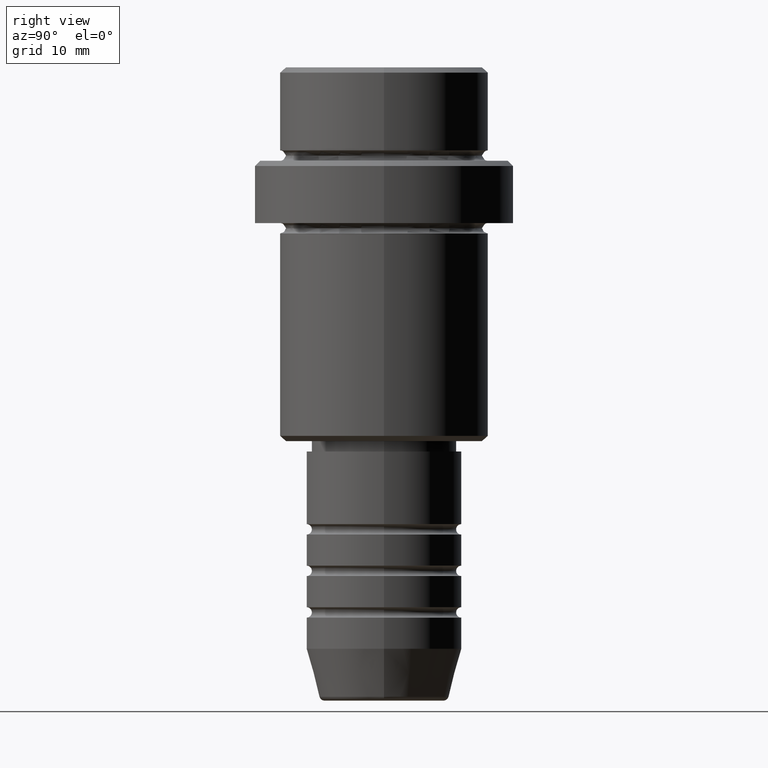
[diagram: clean part render]
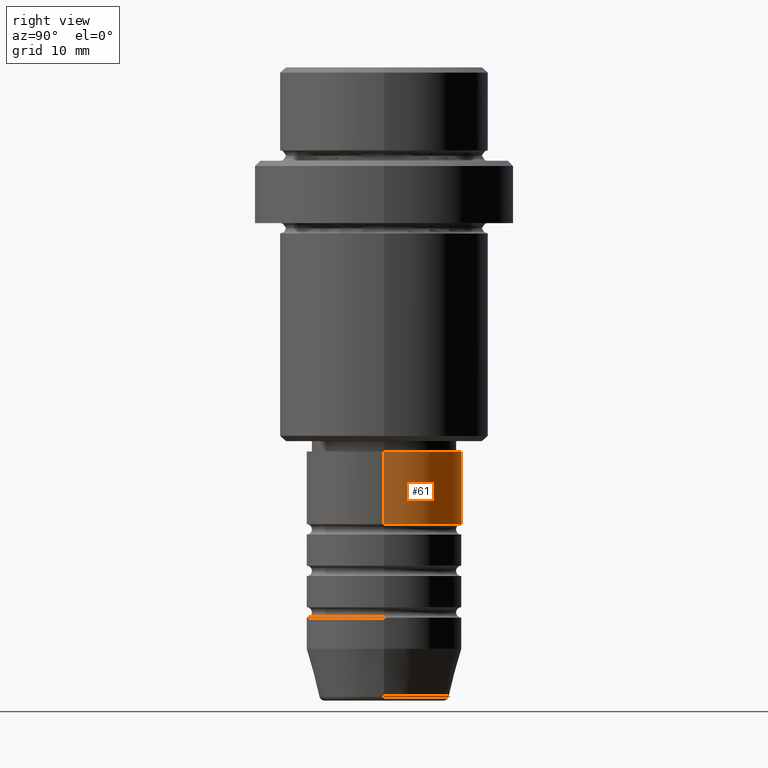
[diagram: same view with one face highlighted and labeled with its STEP entity id]
A machine part, right view. The second image highlights one B-rep face of the part: STEP entity #61.
In plain terms, the highlighted cylindrical surface (partial cylindrical patch) has radius 7.5 mm, axis along (-0, -0, 1).
Its self-contained STEP definition (entity closure, byte-faithful):
#56 = CIRCLE ( 'NONE', #1293, 7.500000000000000000 ) ;
#61 = ADVANCED_FACE ( 'NONE', ( #429 ), #1415, .T. ) ;
#64 = CARTESIAN_POINT ( 'NONE',  ( 0.000000000000000000, 0.000000000000000000, -37.00000000000000711 ) ) ;
#153 = EDGE_CURVE ( 'NONE', #1341, #892, #1028, .T. ) ;
#243 = CARTESIAN_POINT ( 'NONE',  ( 7.500000000000000000, 0.000000000000000000, -37.00000000000000711 ) ) ;
#254 = EDGE_CURVE ( 'NONE', #588, #892, #1044, .T. ) ;
#255 = DIRECTION ( 'NONE',  ( -0.000000000000000000, -0.000000000000000000, 1.000000000000000000 ) ) ;
#313 = DIRECTION ( 'NONE',  ( -0.000000000000000000, -0.000000000000000000, 1.000000000000000000 ) ) ;
#377 = DIRECTION ( 'NONE',  ( 1.000000000000000000, 0.000000000000000000, 0.000000000000000000 ) ) ;
#424 = CARTESIAN_POINT ( 'NONE',  ( 0.000000000000000000, 0.000000000000000000, 0.000000000000000000 ) ) ;
#429 = FACE_OUTER_BOUND ( 'NONE', #969, .T. ) ;
#485 = AXIS2_PLACEMENT_3D ( 'NONE', #424, #313, #1197 ) ;
#519 = VERTEX_POINT ( 'NONE', #866 ) ;
#555 = LINE ( 'NONE', #793, #557 ) ;
#557 = VECTOR ( 'NONE', #1234, 1000.000000000000000 ) ;
#588 = VERTEX_POINT ( 'NONE', #243 ) ;
#732 = ORIENTED_EDGE ( 'NONE', *, *, #153, .T. ) ;
#748 = ORIENTED_EDGE ( 'NONE', *, *, #1212, .T. ) ;
#793 = CARTESIAN_POINT ( 'NONE',  ( 7.500000000000000000, 0.000000000000000000, 0.000000000000000000 ) ) ;
#845 = CARTESIAN_POINT ( 'NONE',  ( -7.500000000000000000, 9.184850993605147944E-16, -43.99999999999989342 ) ) ;
#866 = CARTESIAN_POINT ( 'NONE',  ( 7.500000000000000000, 0.000000000000000000, -43.99999999999989342 ) ) ;
#892 = VERTEX_POINT ( 'NONE', #980 ) ;
#969 = EDGE_LOOP ( 'NONE', ( #748, #732, #1406, #1080 ) ) ;
#980 = CARTESIAN_POINT ( 'NONE',  ( -7.500000000000000000, 9.184850993605147944E-16, -37.00000000000000711 ) ) ;
#1028 = LINE ( 'NONE', #1348, #1090 ) ;
#1033 = CARTESIAN_POINT ( 'NONE',  ( 0.000000000000000000, 0.000000000000000000, -43.99999999999989342 ) ) ;
#1044 = CIRCLE ( 'NONE', #1411, 7.500000000000000000 ) ;
#1057 = DIRECTION ( 'NONE',  ( 1.000000000000000000, 0.000000000000000000, 0.000000000000000000 ) ) ;
#1074 = EDGE_CURVE ( 'NONE', #519, #588, #555, .T. ) ;
#1080 = ORIENTED_EDGE ( 'NONE', *, *, #1074, .F. ) ;
#1090 = VECTOR ( 'NONE', #1216, 1000.000000000000000 ) ;
#1197 = DIRECTION ( 'NONE',  ( 1.000000000000000000, 0.000000000000000000, 0.000000000000000000 ) ) ;
#1212 = EDGE_CURVE ( 'NONE', #519, #1341, #56, .T. ) ;
#1216 = DIRECTION ( 'NONE',  ( -0.000000000000000000, -0.000000000000000000, 1.000000000000000000 ) ) ;
#1234 = DIRECTION ( 'NONE',  ( -0.000000000000000000, -0.000000000000000000, 1.000000000000000000 ) ) ;
#1266 = DIRECTION ( 'NONE',  ( -0.000000000000000000, -0.000000000000000000, 1.000000000000000000 ) ) ;
#1293 = AXIS2_PLACEMENT_3D ( 'NONE', #1033, #255, #377 ) ;
#1341 = VERTEX_POINT ( 'NONE', #845 ) ;
#1348 = CARTESIAN_POINT ( 'NONE',  ( -7.500000000000000000, 9.184850993605147944E-16, 0.000000000000000000 ) ) ;
#1406 = ORIENTED_EDGE ( 'NONE', *, *, #254, .F. ) ;
#1411 = AXIS2_PLACEMENT_3D ( 'NONE', #64, #1266, #1057 ) ;
#1415 = CYLINDRICAL_SURFACE ( 'NONE', #485, 7.500000000000000000 ) ;